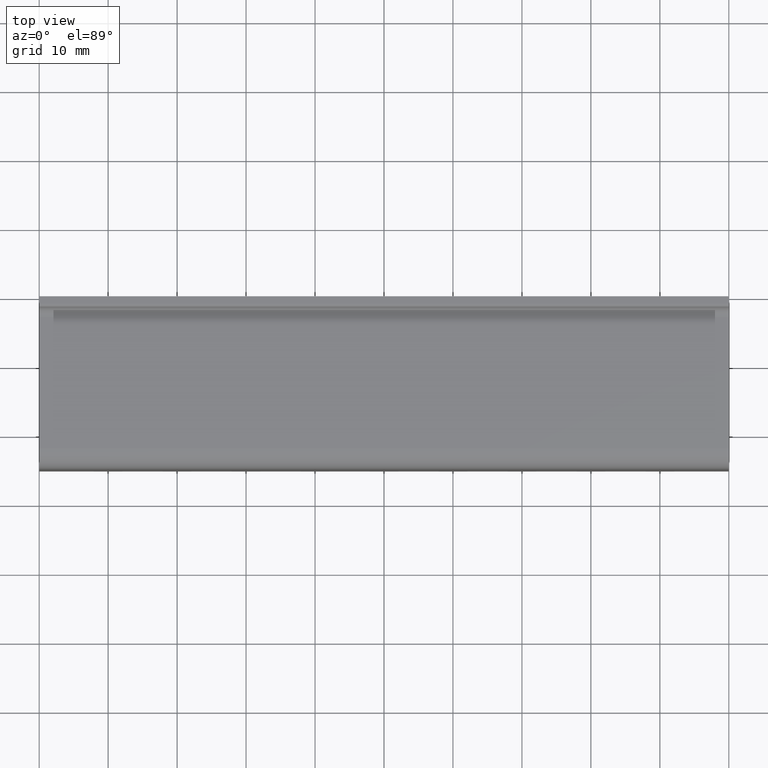
[diagram: clean part render]
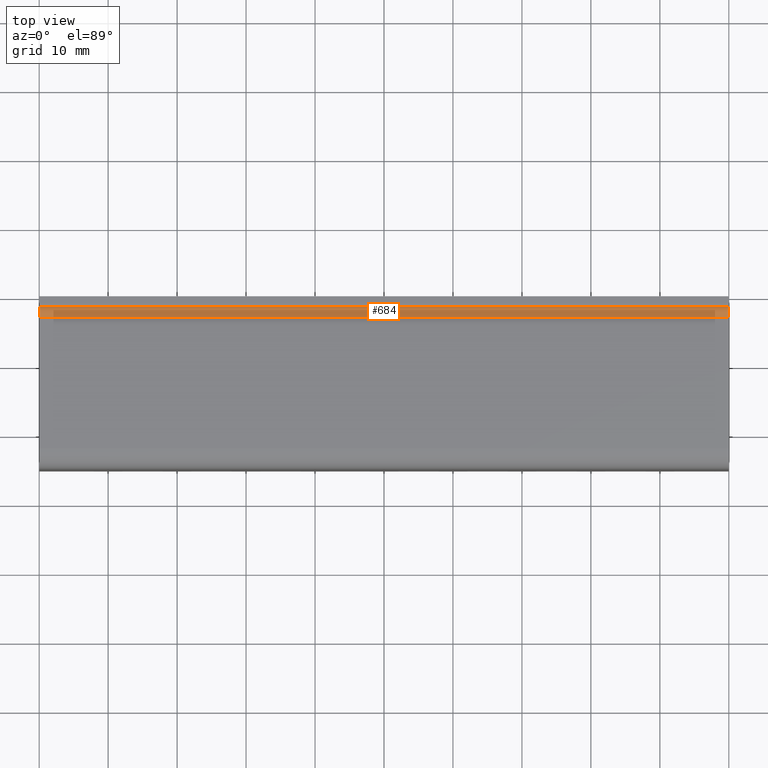
[diagram: same view with one face highlighted and labeled with its STEP entity id]
A machine part, top view. The second image highlights one B-rep face of the part: STEP entity #684.
In plain terms, the highlighted face is a freeform B-spline surface patch.
Its self-contained STEP definition (entity closure, byte-faithful):
#51=CARTESIAN_POINT('',(0.0,-1.547630854851320,-0.374998488290413));
#52=VERTEX_POINT('',#51);
#193=CARTESIAN_POINT('',(0.0,-3.0,-1.500000000000000));
#194=VERTEX_POINT('',#193);
#200=CARTESIAN_POINT('',(0.0,-3.0,-1.500000000000000));
#201=CARTESIAN_POINT('',(0.0,-1.838103747107881,-1.500000000000000));
#202=CARTESIAN_POINT('',(0.0,-1.547630854851321,-0.374998488290413));
#210=(BOUNDED_CURVE()B_SPLINE_CURVE(2,(#200,#201,#202),.UNSPECIFIED.,.F.,.U.)CURVE()GEOMETRIC_REPRESENTATION_ITEM()QUASI_UNIFORM_CURVE()RATIONAL_B_SPLINE_CURVE((1.0,0.790569096345667,1.0))REPRESENTATION_ITEM(''));
#211=EDGE_CURVE('',#194,#52,#210,.T.);
#223=CARTESIAN_POINT('',(100.0,-1.547630854851320,-0.374998488290413));
#224=VERTEX_POINT('',#223);
#238=CARTESIAN_POINT('',(100.0,-3.0,-1.500000000000000));
#239=VERTEX_POINT('',#238);
#240=CARTESIAN_POINT('',(100.0,-3.0,-1.500000000000000));
#241=CARTESIAN_POINT('',(99.999999999999986,-1.838103747107881,-1.500000000000000));
#242=CARTESIAN_POINT('',(100.0,-1.547630854851321,-0.374998488290413));
#250=(BOUNDED_CURVE()B_SPLINE_CURVE(2,(#240,#241,#242),.UNSPECIFIED.,.F.,.U.)CURVE()GEOMETRIC_REPRESENTATION_ITEM()QUASI_UNIFORM_CURVE()RATIONAL_B_SPLINE_CURVE((1.0,0.790569096345667,1.0))REPRESENTATION_ITEM(''));
#251=EDGE_CURVE('',#239,#224,#250,.T.);
#652=CARTESIAN_POINT('',(100.0,-3.0,-1.500000000000000));
#653=CARTESIAN_POINT('',(0.0,-3.0,-1.500000000000000));
#654=QUASI_UNIFORM_CURVE('',1,(#652,#653),.UNSPECIFIED.,.F.,.U.);
#655=EDGE_CURVE('',#239,#194,#654,.T.);
#660=CARTESIAN_POINT('',(102.500000000000000,-3.051759309722349,-1.499106725305795));
#661=CARTESIAN_POINT('',(-2.562500000000000,-3.051759309722349,-1.499106725305795));
#662=CARTESIAN_POINT('',(102.500000000000000,-1.771514228399482,-1.543309449879116));
#663=CARTESIAN_POINT('',(-2.562500000000000,-1.771514228399482,-1.543309449879116));
#664=CARTESIAN_POINT('',(102.500000000000030,-1.527471615281891,-0.285762412152958));
#665=CARTESIAN_POINT('',(-2.562500000000000,-1.527471615281891,-0.285762412152958));
#673=(BOUNDED_SURFACE()B_SPLINE_SURFACE(1,2,((#660,#662,#664),(#661,#663,#665)),.UNSPECIFIED.,.F.,.F.,.U.)B_SPLINE_SURFACE_WITH_KNOTS((2,2),(3,3),(0.0,105.062500000000000),(0.0,2.213361703296121),.UNSPECIFIED.)GEOMETRIC_REPRESENTATION_ITEM()RATIONAL_B_SPLINE_SURFACE(((1.0,0.757978004998559,0.993550252101436),(1.0,0.757978004998559,0.993550252101436)))REPRESENTATION_ITEM('')SURFACE());
#674=ORIENTED_EDGE('',*,*,#211,.F.);
#675=ORIENTED_EDGE('',*,*,#655,.F.);
#676=ORIENTED_EDGE('',*,*,#251,.T.);
#677=CARTESIAN_POINT('',(100.0,-1.547630854851320,-0.374998488290413));
#678=CARTESIAN_POINT('',(0.0,-1.547630854851320,-0.374998488290413));
#679=QUASI_UNIFORM_CURVE('',1,(#677,#678),.UNSPECIFIED.,.F.,.U.);
#680=EDGE_CURVE('',#224,#52,#679,.T.);
#681=ORIENTED_EDGE('',*,*,#680,.T.);
#682=EDGE_LOOP('',(#674,#675,#676,#681));
#683=FACE_OUTER_BOUND('',#682,.T.);
#684=ADVANCED_FACE('',(#683),#673,.F.);